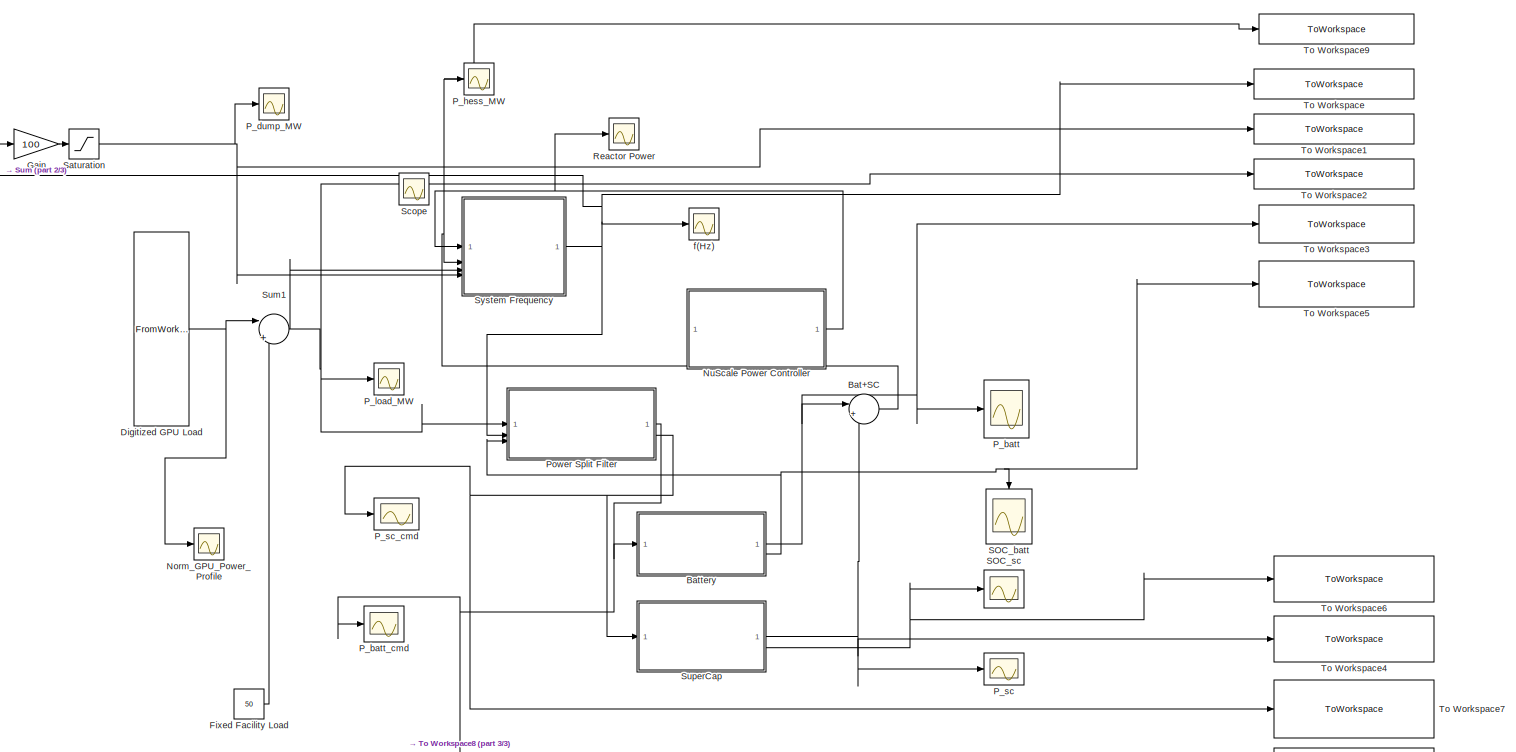
[diagram: root canvas - part 1/3, most of the canvas]
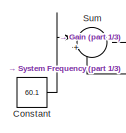
[diagram: root canvas - part 2/3, top left region]
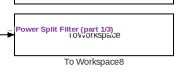
[diagram: root canvas - part 3/3, bottom right region]
MODEL slx_b360f21e9453
KIND model
CONFIG AbsTol = auto
CONFIG EnableMultiTasking = off
CONFIG FixedStep = auto
CONFIG MaxStep = 0.005
CONFIG MinStep = auto
CONFIG RelTol = 1e-3
CONFIG SampleTimeConstraint = Unconstrained
CONFIG SolverName = ode23tb
CONFIG StartTime = 0
CONFIG StopTime = 57600
BLOCK [Sum] Bat+SC
  Inputs = |++
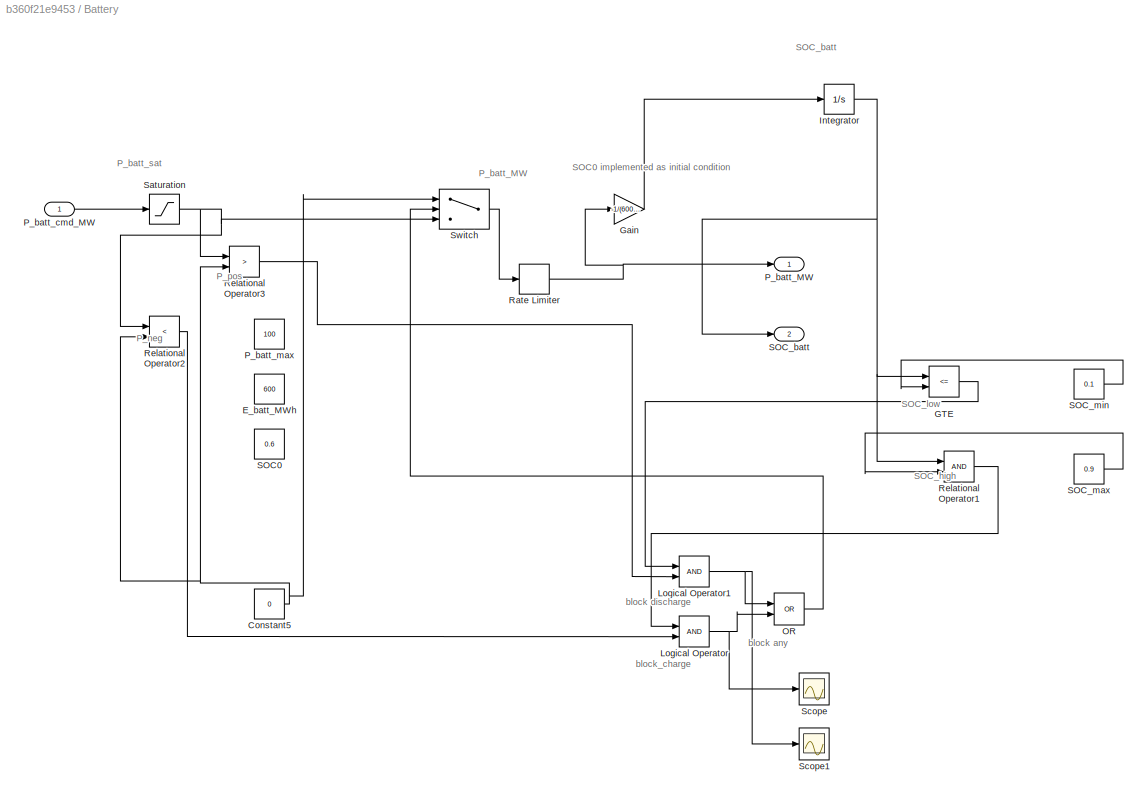
BLOCK [SubSystem] Battery
BLOCK [Constant] Battery/Constant5
  Value = 0
BLOCK [Constant] Battery/E_batt_MWh
  Value = 600
BLOCK [RelationalOperator] Battery/GTE
  InputSameDT = off
  Operator = <=
  OutDataTypeStr = boolean
  RndMeth = Simplest
BLOCK [Gain] Battery/Gain
  Gain = -1/(600*3600)
BLOCK [Integrator] Battery/Integrator
  InitialCondition = 0.5
BLOCK [Logic] Battery/Logical Operator
  AllPortsSameDT = off
  OutDataTypeStr = boolean
BLOCK [Logic] Battery/Logical Operator1
  AllPortsSameDT = off
  OutDataTypeStr = boolean
BLOCK [Logic] Battery/OR
  AllPortsSameDT = off
  IconShape = distinctive
  Operator = OR
  OutDataTypeStr = boolean
BLOCK [Outport] Battery/P_batt_MW
BLOCK [Inport] Battery/P_batt_cmd_MW
  NameLocation = left
BLOCK [Constant] Battery/P_batt_max
  Value = 100
BLOCK [RateLimiter] Battery/Rate Limiter
  FallingSlewLimit = -50
  RisingSlewLimit = 50
  SampleTimeMode = inherited
BLOCK [RelationalOperator] Battery/Relational Operator1
  InputSameDT = off
  OutDataTypeStr = boolean
  RndMeth = Simplest
BLOCK [RelationalOperator] Battery/Relational Operator2
  InputSameDT = off
  Operator = <
  OutDataTypeStr = boolean
  RndMeth = Simplest
BLOCK [RelationalOperator] Battery/Relational Operator3
  InputSameDT = off
  Operator = >
  OutDataTypeStr = boolean
  RndMeth = Simplest
BLOCK [Constant] Battery/SOC0
  Value = 0.6
BLOCK [Outport] Battery/SOC_batt
  Port = 2
BLOCK [Constant] Battery/SOC_max
  Value = 0.9
BLOCK [Constant] Battery/SOC_min
  Value = 0.1
BLOCK [Saturate] Battery/Saturation
  LowerLimit = -100
  UpperLimit = 100
BLOCK [Scope] Battery/Scope
  ActiveDisplayYMaximum = 17.941319549660328
  ActiveDisplayYMinimum = -13.085244769910002
  DataLoggingVariableName = ScopeData5
  Floating = off
  GraphicalSettings = {"AxesScalingProperties":{"AlignXAxis":"Center","AlignYAxis":"Center","AutoScaleXAxisLimits":false,"AxesScaling":"Manual","AxesScalingNumUpdates":10,"ExpandOnly":true,"ScaleAxesLimitsAtStop":false,"XAxisDataRange":100,"YAxisDataRange":80},"DisplayProperties":{"ColorOrder":["auto","auto","auto","auto","auto","auto","auto","auto","auto","auto","auto","auto","auto","auto","auto","auto","auto","auto",...<+1990ch>
  MultipleDisplayCache = [{"MaxYLimMag":10,"MaxYLimReal":17.941319549660328,"MinYLimMag":0,"MinYLimReal":-13.085244769910002,"PlotAsMagnitudePhase":false,"ShowGrid":true,"ShowLegend":false,"Title":"%<SignalLabel>","YLabel":""}]
  NumInputPorts = 1
  ScopeFrameLocation = window
  WasSavedAsWebScope = on
  WindowPosition = [1000.000000,510.000000,560.000000,420.000000,]
BLOCK [Scope] Battery/Scope1
  ActiveDisplayYMaximum = 1
  ActiveDisplayYMinimum = -1
  DataLoggingVariableName = ScopeData6
  Floating = off
  GraphicalSettings = {"Style":{"BackgroundColor":[0.12941176470588237,0.12941176470588237,0.12941176470588237],"AxesColor":[0.07058823529411765,0.07058823529411765,0.07058823529411765],"LabelsColor":[0.8509803921568627,0.8509803921568627,0.8509803921568627],"PreserveColors":false,"Visible":[true],"LineStyle":["-"],"LineWidth":[1.5],"BarWidth":[0.9],"LineColor":["auto"],"LineFaceAlpha":[1],"LineEdgeAlpha":[1],"Marker":...<+1922ch>
  MultipleDisplayCache = [{"MaxYLimMag":1,"MaxYLimReal":1,"MinYLimMag":0,"MinYLimReal":-1,"PlotAsMagnitudePhase":false,"ShowGrid":true,"ShowLegend":false,"Title":"%<SignalLabel>","YLabel":""}]
  NumInputPorts = 1
  ScopeFrameLocation = window
  WasSavedAsWebScope = on
  WindowPosition = [1675.000000,488.000000,560.000000,420.000000,]
BLOCK [Switch] Battery/Switch
  Criteria = u2 > Threshold
  InputSameDT = off
  SaturateOnIntegerOverflow = off
  Threshold = 0.5
BLOCK [Constant] Constant
  Value = 60.1
BLOCK [FromWorkspace] Digitized GPU Load 
  VariableName = load_ts
BLOCK [Constant] Fixed Facility Load
  Value = 50
BLOCK [Gain] Gain
  Gain = 100
BLOCK [Scope] Norm_GPU_Power_Profile
  ActiveDisplayYMaximum = 83.578557138931586
  ActiveDisplayYMinimum = 7.5678509924416346
  DataLoggingVariableName = ScopeData9
  Floating = off
  GraphicalSettings = {"Style":{"BackgroundColor":[0.12941176470588237,0.12941176470588237,0.12941176470588237],"AxesColor":[0.07058823529411765,0.07058823529411765,0.07058823529411765],"LabelsColor":[0.8509803921568627,0.8509803921568627,0.8509803921568627],"PreserveColors":false,"Visible":[true],"LineStyle":["-"],"LineWidth":[1.5],"BarWidth":[0.9],"LineColor":["auto"],"LineFaceAlpha":[1],"LineEdgeAlpha":[1],"Marker":...<+2049ch>
  MultipleDisplayCache = [{"MaxYLimMag":81.89640127205503,"MaxYLimReal":83.578557138931586,"MinYLimMag":19.362205214659284,"MinYLimReal":7.5678509924416346,"PlotAsMagnitudePhase":false,"ShowGrid":true,"ShowLegend":false,"Title":"%<SignalLabel>","YLabel":""}]
  NumInputPorts = 1
  ScopeFrameLocation = window
  WasSavedAsWebScope = on
  WindowPosition = [148.000000,422.000000,560.000000,414.000000,]
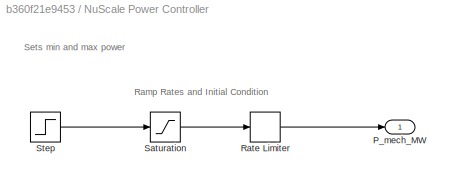
BLOCK [SubSystem] NuScale Power Controller
BLOCK [Outport] NuScale Power Controller/P_mech_MW
BLOCK [RateLimiter] NuScale Power Controller/Rate Limiter
  FallingSlewLimit = -0.385
  InitialCondition = 300
  LinearizeAsGain = off
  RisingSlewLimit = 0.385
  SampleTimeMode = inherited
BLOCK [Saturate] NuScale Power Controller/Saturation
  LowerLimit = 60
  UpperLimit = 308
BLOCK [Step] NuScale Power Controller/Step
  After = 150
  Before = 305
  SampleTime = 0
  Time = 28760
BLOCK [Scope] P_batt
  ActiveDisplayYMaximum = 19.94300469302301
  ActiveDisplayYMinimum = -37.384907164908867
  DataLoggingSaveFormat = Structure With Time
  DataLoggingVariableName = P_batt_MW
  Floating = off
  GraphicalSettings = {"AxesScalingProperties":{"AlignXAxis":"Center","AlignYAxis":"Center","AutoScaleXAxisLimits":false,"AxesScaling":"Manual","AxesScalingNumUpdates":10,"ExpandOnly":true,"ScaleAxesLimitsAtStop":false,"XAxisDataRange":100,"YAxisDataRange":80},"DisplayProperties":{"ColorOrder":["auto","auto","auto","auto","auto","auto","auto","auto","auto","auto","auto","auto","auto","auto","auto","auto","auto","auto",...<+2010ch>
  MultipleDisplayCache = [{"MaxYLimMag":54.35887325457265,"MaxYLimReal":19.94300469302301,"MinYLimMag":0,"MinYLimReal":-37.384907164908867,"PlotAsMagnitudePhase":false,"ShowGrid":true,"ShowLegend":false,"Title":"%<SignalLabel>","YLabel":""}]
  NumInputPorts = 1
  ScopeFrameLocation = window
  WasSavedAsWebScope = on
  WindowPosition = [2561.000000,261.000000,1920.000000,1009.000000,]
BLOCK [Scope] P_batt_cmd
  ActiveDisplayYMaximum = 75.99715262684947
  ActiveDisplayYMinimum = -187.77485148691687
  DataLoggingSaveFormat = Structure With Time
  DataLoggingVariableName = P_batt_cmd
  Floating = off
  GraphicalSettings = {"AxesScalingProperties":{"AlignXAxis":"Center","AlignYAxis":"Center","AutoScaleXAxisLimits":false,"AxesScaling":"Manual","AxesScalingNumUpdates":10,"ExpandOnly":true,"ScaleAxesLimitsAtStop":false,"XAxisDataRange":100,"YAxisDataRange":80},"DisplayProperties":{"ColorOrder":["auto","auto","auto","auto","auto","auto","auto","auto","auto","auto","auto","auto","auto","auto","auto","auto","auto","auto",...<+2034ch>
  MultipleDisplayCache = [{"MaxYLimMag":84.733872051257308,"MaxYLimReal":75.99715262684947,"MinYLimMag":0,"MinYLimReal":-187.77485148691687,"PlotAsMagnitudePhase":false,"ShowGrid":true,"ShowLegend":false,"Title":"%<SignalLabel>","YLabel":""}]
  NumInputPorts = 1
  ScopeFrameLocation = window
  WasSavedAsWebScope = on
  WindowPosition = [1521.000000,391.000000,674.000000,559.000000,]
BLOCK [Scope] P_dump_MW
  ActiveDisplayYMaximum = 25.49044457763469
  ActiveDisplayYMinimum = 6.5603009172756188
  DataLoggingSaveFormat = Structure With Time
  DataLoggingVariableName = P_dump_MW
  Floating = off
  GraphicalSettings = {"AxesScalingProperties":{"AlignXAxis":"Center","AlignYAxis":"Center","AutoScaleXAxisLimits":false,"AxesScaling":"Manual","AxesScalingNumUpdates":10,"ExpandOnly":true,"ScaleAxesLimitsAtStop":false,"XAxisDataRange":100,"YAxisDataRange":80},"DisplayProperties":{"ColorOrder":["auto","auto","auto","auto","auto","auto","auto","auto","auto","auto","auto","auto","auto","auto","auto","auto","auto","auto",...<+1997ch>
  MultipleDisplayCache = [{"MaxYLimMag":4.42491006581303,"MaxYLimReal":25.49044457763469,"MinYLimMag":0,"MinYLimReal":6.5603009172756188,"PlotAsMagnitudePhase":false,"ShowGrid":true,"ShowLegend":false,"Title":"%<SignalLabel>","YLabel":""}]
  NumInputPorts = 1
  ScopeFrameLocation = container
  WasSavedAsWebScope = on
  WindowPosition = [640.000000,336.000000,1280.000000,768.000000,]
BLOCK [Scope] P_hess_MW
  ActiveDisplayYMaximum = 17.504527906345061
  ActiveDisplayYMinimum = -10.620112806422254
  DataLoggingSaveFormat = Structure With Time
  DataLoggingVariableName = P_HESS_MW
  Floating = off
  GraphicalSettings = {"Style":{"BackgroundColor":[0.12941176470588237,0.12941176470588237,0.12941176470588237],"AxesColor":[0.07058823529411765,0.07058823529411765,0.07058823529411765],"LabelsColor":[0.8509803921568627,0.8509803921568627,0.8509803921568627],"PreserveColors":false,"Visible":[true],"LineStyle":["-"],"LineWidth":[1.5],"BarWidth":[0.9],"LineColor":["auto"],"LineFaceAlpha":[1],"LineEdgeAlpha":[1],"Marker":...<+1969ch>
  MultipleDisplayCache = [{"MaxYLimMag":49.110966930559606,"MaxYLimReal":17.504527906345061,"MinYLimMag":0,"MinYLimReal":-10.620112806422254,"PlotAsMagnitudePhase":false,"ShowGrid":true,"ShowLegend":false,"Title":"","YLabel":" "}]
  NumInputPorts = 1
  ScopeFrameLocation = container
  WasSavedAsWebScope = on
  WindowPosition = [21.000000,490.000000,1280.000000,768.000000,]
BLOCK [Scope] P_load_MW
  ActiveDisplayYMaximum = 569.112693801637
  ActiveDisplayYMinimum = 58.154484848407179
  DataLoggingSaveFormat = Structure With Time
  DataLoggingVariableName = P_load_MW
  Floating = off
  GraphicalSettings = {"Style":{"BackgroundColor":[0.12941176470588237,0.12941176470588237,0.12941176470588237],"AxesColor":[0.07058823529411765,0.07058823529411765,0.07058823529411765],"LabelsColor":[0.8509803921568627,0.8509803921568627,0.8509803921568627],"PreserveColors":false,"Visible":[true],"LineStyle":["-"],"LineWidth":[1.5],"BarWidth":[0.9],"LineColor":["auto"],"LineFaceAlpha":[1],"LineEdgeAlpha":[1],"Marker":...<+2005ch>
  MultipleDisplayCache = [{"MaxYLimMag":55.38671875,"MaxYLimReal":569.112693801637,"MinYLimMag":1.5195312500000018,"MinYLimReal":58.154484848407179,"PlotAsMagnitudePhase":false,"ShowGrid":true,"ShowLegend":false,"Title":"%<SignalLabel>","YLabel":""}]
  NumInputPorts = 1
  ScopeFrameLocation = window
  WasSavedAsWebScope = on
  WindowPosition = [2.000000,50.000000,995.000000,1360.000000,]
BLOCK [Scope] P_sc
  ActiveDisplayYMaximum = -106.02414017820828
  ActiveDisplayYMinimum = -198.52464221560328
  DataLoggingSaveFormat = Structure With Time
  DataLoggingVariableName = P_sc_MW
  Floating = off
  GraphicalSettings = {"AxesScalingProperties":{"AlignXAxis":"Center","AlignYAxis":"Center","AutoScaleXAxisLimits":false,"AxesScaling":"Manual","AxesScalingNumUpdates":10,"ExpandOnly":true,"ScaleAxesLimitsAtStop":false,"XAxisDataRange":100,"YAxisDataRange":80},"DisplayProperties":{"ColorOrder":["auto","auto","auto","auto","auto","auto","auto","auto","auto","auto","auto","auto","auto","auto","auto","auto","auto","auto",...<+2014ch>
  MultipleDisplayCache = [{"MaxYLimMag":2.5592897706129731,"MaxYLimReal":-106.02414017820828,"MinYLimMag":0,"MinYLimReal":-198.52464221560328,"PlotAsMagnitudePhase":false,"ShowGrid":true,"ShowLegend":false,"Title":"%<SignalLabel>","YLabel":""}]
  NumInputPorts = 1
  ScopeFrameLocation = window
  WasSavedAsWebScope = on
  WindowPosition = [1282.000000,746.000000,1278.000000,664.000000,]
BLOCK [Scope] P_sc_cmd
  ActiveDisplayYMaximum = 17.195565288472629
  ActiveDisplayYMinimum = -8.3010166612799861
  DataLoggingSaveFormat = Structure With Time
  DataLoggingVariableName = P_sc_cmd
  Floating = off
  GraphicalSettings = {"Style":{"BackgroundColor":[0.12941176470588237,0.12941176470588237,0.12941176470588237],"AxesColor":[0.07058823529411765,0.07058823529411765,0.07058823529411765],"LabelsColor":[0.8509803921568627,0.8509803921568627,0.8509803921568627],"PreserveColors":false,"Visible":[true],"LineStyle":["-"],"LineWidth":[1.5],"BarWidth":[0.9],"LineColor":["auto"],"LineFaceAlpha":[1],"LineEdgeAlpha":[1],"Marker":...<+2019ch>
  MultipleDisplayCache = [{"MaxYLimMag":39.292522477347681,"MaxYLimReal":17.195565288472629,"MinYLimMag":0,"MinYLimReal":-8.3010166612799861,"PlotAsMagnitudePhase":false,"ShowGrid":true,"ShowLegend":false,"Title":"%<SignalLabel>","YLabel":""}]
  NumInputPorts = 1
  ScopeFrameLocation = window
  WasSavedAsWebScope = on
  WindowPosition = [876.000000,559.000000,634.000000,464.000000,]
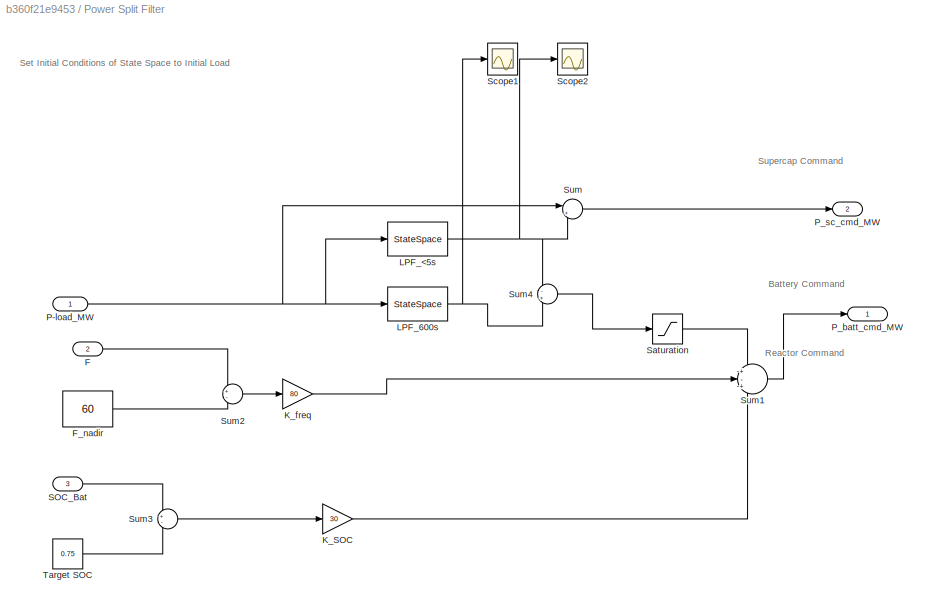
BLOCK [SubSystem] Power Split Filter
BLOCK [Inport] Power Split Filter/F
  Port = 2
BLOCK [Constant] Power Split Filter/F_nadir
  Value = 60
BLOCK [Gain] Power Split Filter/K_SOC
  Gain = 30
BLOCK [Gain] Power Split Filter/K_freq
  Gain = 80
BLOCK [StateSpace] Power Split Filter/LPF_600s
  A = -1/900
  B = 1/900
  D = 0
  InitialCondition = 280
BLOCK [StateSpace] Power Split Filter/LPF_<5s
  A = -0.2
  B = 0.2
  D = 0
  InitialCondition = 280
BLOCK [Inport] Power Split Filter/P-load_MW
BLOCK [Outport] Power Split Filter/P_batt_cmd_MW
  OutMax = 15
  OutMin = -15
BLOCK [Outport] Power Split Filter/P_sc_cmd_MW
  OutMax = 10
  OutMin = -10
  Port = 2
BLOCK [Inport] Power Split Filter/SOC_Bat
  Port = 3
BLOCK [Saturate] Power Split Filter/Saturation
  LowerLimit = -25
  UpperLimit = 25
BLOCK [Scope] Power Split Filter/Scope1
  ActiveDisplayYMaximum = 145.81639543994109
  ActiveDisplayYMinimum = 49.062612418746049
  DataLoggingVariableName = ScopeData3
  Floating = off
  GraphicalSettings = {"Style":{"BackgroundColor":[0.12941176470588237,0.12941176470588237,0.12941176470588237],"AxesColor":[0.07058823529411765,0.07058823529411765,0.07058823529411765],"LabelsColor":[0.8509803921568627,0.8509803921568627,0.8509803921568627],"PreserveColors":false,"Visible":[true],"LineStyle":["-"],"LineWidth":[1.5],"BarWidth":[0.9],"LineColor":["auto"],"LineFaceAlpha":[1],"LineEdgeAlpha":[1],"Marker":...<+2027ch>
  MultipleDisplayCache = [{"MaxYLimMag":143.50551243003048,"MaxYLimReal":145.81639543994109,"MinYLimMag":51.359052409844722,"MinYLimReal":49.062612418746049,"PlotAsMagnitudePhase":false,"ShowGrid":true,"ShowLegend":false,"Title":"%<SignalLabel>","YLabel":""}]
  NumInputPorts = 1
  ScopeFrameLocation = window
  WasSavedAsWebScope = on
  WindowPosition = [1000.000000,510.000000,560.000000,420.000000,]
BLOCK [Scope] Power Split Filter/Scope2
  ActiveDisplayYMaximum = 63.141494099133709
  ActiveDisplayYMinimum = 59.667836185063258
  DataLoggingVariableName = ScopeData4
  Floating = off
  GraphicalSettings = {"Style":{"BackgroundColor":[0.12941176470588237,0.12941176470588237,0.12941176470588237],"AxesColor":[0.07058823529411765,0.07058823529411765,0.07058823529411765],"LabelsColor":[0.8509803921568627,0.8509803921568627,0.8509803921568627],"PreserveColors":false,"Visible":[true],"LineStyle":["-"],"LineWidth":[1.5],"BarWidth":[0.9],"LineColor":["auto"],"LineFaceAlpha":[1],"LineEdgeAlpha":[1],"Marker":...<+2023ch>
  MultipleDisplayCache = [{"MaxYLimMag":62.700608679549418,"MaxYLimReal":63.141494099133709,"MinYLimMag":59.699932368938953,"MinYLimReal":59.667836185063258,"PlotAsMagnitudePhase":false,"ShowGrid":true,"ShowLegend":false,"Title":"%<SignalLabel>","YLabel":""}]
  NumInputPorts = 1
  ScopeFrameLocation = window
  WasSavedAsWebScope = on
  WindowPosition = [1000.000000,510.000000,560.000000,420.000000,]
BLOCK [Sum] Power Split Filter/Sum
  Inputs = |+-
BLOCK [Sum] Power Split Filter/Sum1
  Inputs = +-+
BLOCK [Sum] Power Split Filter/Sum2
  Inputs = +-
BLOCK [Sum] Power Split Filter/Sum3
  Inputs = +-
BLOCK [Sum] Power Split Filter/Sum4
  Inputs = -+
BLOCK [Constant] Power Split Filter/Target SOC
  Value = 0.75
BLOCK [Scope] Reactor Power
  ActiveDisplayYMaximum = 150.0841476543022
  ActiveDisplayYMinimum = 149.82124151201739
  DataLoggingVariableName = ScopeData2
  Floating = off
  GraphicalSettings = {"AxesScalingProperties":{"AlignXAxis":"Center","AlignYAxis":"Center","AutoScaleXAxisLimits":false,"AxesScaling":"Manual","AxesScalingNumUpdates":10,"ExpandOnly":true,"ScaleAxesLimitsAtStop":false,"XAxisDataRange":100,"YAxisDataRange":80},"DisplayProperties":{"ColorOrder":["auto","auto","auto","auto","auto","auto","auto","auto","auto","auto","auto","auto","auto","auto","auto","auto","auto","auto",...<+2070ch>
  MultipleDisplayCache = [{"MaxYLimMag":43.752226419291404,"MaxYLimReal":150.0841476543022,"MinYLimMag":19.41709097879216,"MinYLimReal":149.82124151201739,"PlotAsMagnitudePhase":false,"ShowGrid":true,"ShowLegend":false,"Title":"%<SignalLabel>","YLabel":""}]
  NumInputPorts = 1
  ScopeFrameLocation = window
  WasSavedAsWebScope = on
  WindowPosition = [588.000000,550.000000,560.000000,466.000000,]
BLOCK [Scope] SOC_batt
  ActiveDisplayYMaximum = 1.0471717298948067
  ActiveDisplayYMinimum = -0.29273518191827375
  DataLoggingSaveFormat = Structure With Time
  DataLoggingVariableName = SOC_batt
  Floating = off
  GraphicalSettings = {"AxesScalingProperties":{"AlignXAxis":"Center","AlignYAxis":"Center","AutoScaleXAxisLimits":false,"AxesScaling":"Manual","AxesScalingNumUpdates":10,"ExpandOnly":true,"ScaleAxesLimitsAtStop":false,"XAxisDataRange":100,"YAxisDataRange":80},"DisplayProperties":{"ColorOrder":["auto","auto","auto","auto","auto","auto","auto","auto","auto","auto","auto","auto","auto","auto","auto","auto","auto","auto",...<+2052ch>
  MultipleDisplayCache = [{"MaxYLimMag":0.61360399735018278,"MaxYLimReal":1.0471717298948067,"MinYLimMag":0.47867508109393159,"MinYLimReal":-0.29273518191827375,"PlotAsMagnitudePhase":false,"ShowGrid":true,"ShowLegend":false,"Title":"%<SignalLabel>","YLabel":""}]
  NameLocation = left
  NumInputPorts = 1
  ScopeFrameLocation = window
  WasSavedAsWebScope = on
  WindowPosition = [3042.000000,159.000000,1278.000000,664.000000,]
BLOCK [Scope] SOC_sc
  ActiveDisplayYMaximum = 0.73168131364842448
  ActiveDisplayYMinimum = 0.11776806010766516
  DataLoggingSaveFormat = Structure With Time
  DataLoggingVariableName = SOC_sc
  Floating = off
  GraphicalSettings = {"Style":{"BackgroundColor":[0.12941176470588237,0.12941176470588237,0.12941176470588237],"AxesColor":[0.07058823529411765,0.07058823529411765,0.07058823529411765],"LabelsColor":[0.8509803921568627,0.8509803921568627,0.8509803921568627],"PreserveColors":false,"Visible":[true],"LineStyle":["-"],"LineWidth":[1.5],"BarWidth":[0.9],"LineColor":["auto"],"LineFaceAlpha":[1],"LineEdgeAlpha":[1],"Marker":...<+2039ch>
  MultipleDisplayCache = [{"MaxYLimMag":0.75000000000000233,"MaxYLimReal":0.73168131364842448,"MinYLimMag":0.74999999999999956,"MinYLimReal":0.11776806010766516,"PlotAsMagnitudePhase":false,"ShowGrid":true,"ShowLegend":false,"Title":"%<SignalLabel>","YLabel":""}]
  NumInputPorts = 1
  ScopeFrameLocation = window
  WasSavedAsWebScope = on
  WindowPosition = [1282.000000,746.000000,1278.000000,664.000000,]
BLOCK [Saturate] Saturation
  LowerLimit = 0
  UpperLimit = 250
BLOCK [Scope] Scope
  ActiveDisplayYMaximum = 1
  ActiveDisplayYMinimum = -1
  DataLoggingVariableName = ScopeData1
  Floating = off
  GraphicalSettings = {"Style":{"BackgroundColor":[0.12941176470588237,0.12941176470588237,0.12941176470588237],"AxesColor":[0.07058823529411765,0.07058823529411765,0.07058823529411765],"LabelsColor":[0.8509803921568627,0.8509803921568627,0.8509803921568627],"PreserveColors":false,"Visible":[true],"LineStyle":["-"],"LineWidth":[1.5],"BarWidth":[0.9],"LineColor":["auto"],"LineFaceAlpha":[1],"LineEdgeAlpha":[1],"Marker":...<+2028ch>
  IOType = viewer
  MultipleDisplayCache = [{"MaxYLimMag":1,"MaxYLimReal":1,"MinYLimMag":0,"MinYLimReal":-1,"PlotAsMagnitudePhase":false,"ShowGrid":true,"ShowLegend":false,"Title":"%<SignalLabel>","YLabel":""}]
  NumInputPorts = 1
  ScopeFrameLocation = window
  WasSavedAsWebScope = on
  WindowPosition = [875.000000,235.000000,560.000000,420.000000,]
BLOCK [Sum] Sum
  Inputs = -+
BLOCK [Sum] Sum1
  Inputs = |++
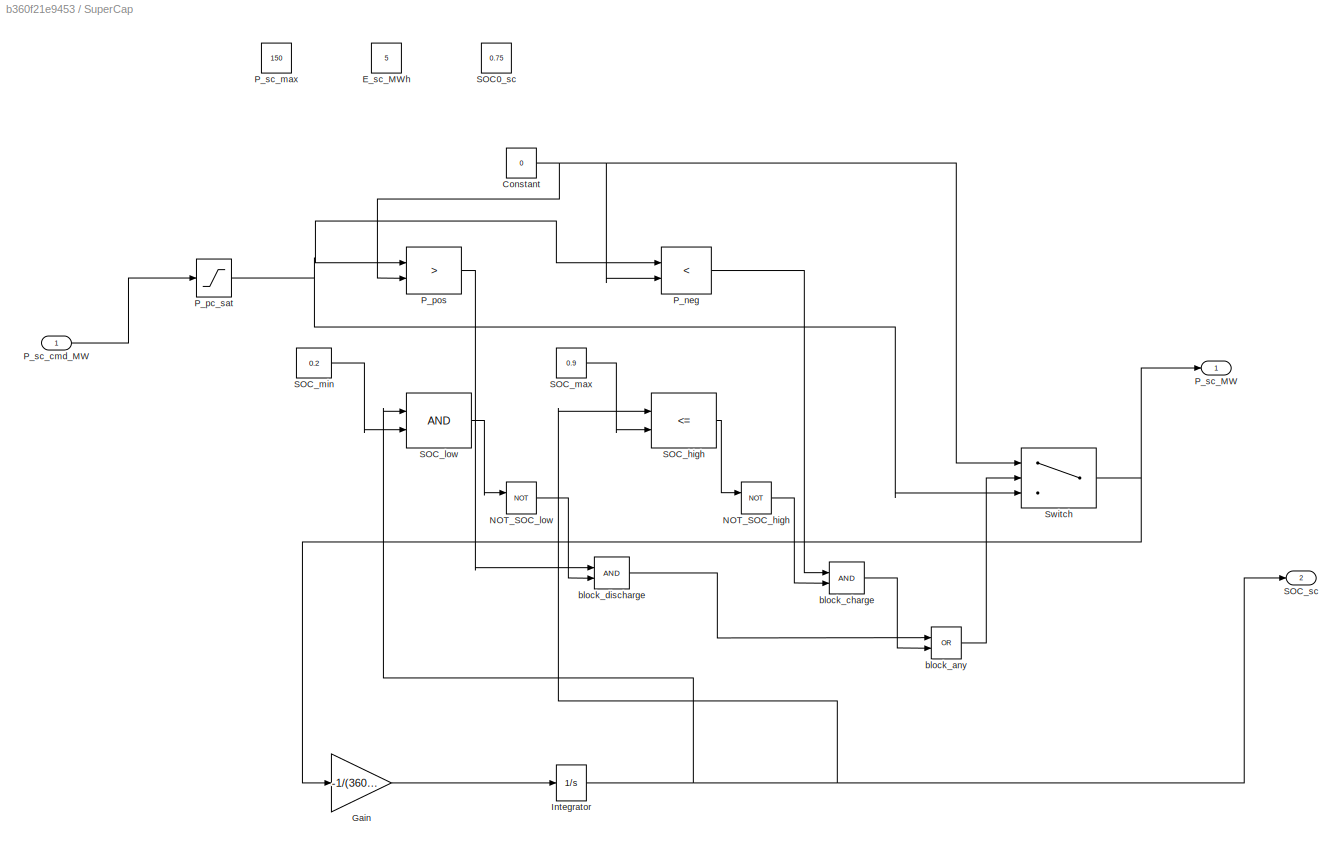
BLOCK [SubSystem] SuperCap
BLOCK [Constant] SuperCap/Constant
  Value = 0
BLOCK [Constant] SuperCap/E_sc_MWh
  Value = 5
BLOCK [Gain] SuperCap/Gain
  Gain = -1/(3600 * 5)
BLOCK [Integrator] SuperCap/Integrator
  InitialCondition = 0.5
BLOCK [Logic] SuperCap/NOT_SOC_high
  AllPortsSameDT = off
  IconShape = distinctive
  Operator = NOT
  OutDataTypeStr = boolean
BLOCK [Logic] SuperCap/NOT_SOC_low
  AllPortsSameDT = off
  IconShape = distinctive
  Operator = NOT
  OutDataTypeStr = boolean
BLOCK [RelationalOperator] SuperCap/P_neg
  InputSameDT = off
  Operator = <
  OutDataTypeStr = boolean
  RndMeth = Simplest
BLOCK [Saturate] SuperCap/P_pc_sat
  LowerLimit = -150
  UpperLimit = 150
BLOCK [RelationalOperator] SuperCap/P_pos
  InputSameDT = off
  Operator = >
  OutDataTypeStr = boolean
  RndMeth = Simplest
BLOCK [Outport] SuperCap/P_sc_MW
BLOCK [Inport] SuperCap/P_sc_cmd_MW
BLOCK [Constant] SuperCap/P_sc_max
  Value = 150
BLOCK [Constant] SuperCap/SOC0_sc
  Value = 0.75
BLOCK [RelationalOperator] SuperCap/SOC_high
  InputSameDT = off
  Operator = <=
  OutDataTypeStr = boolean
  RndMeth = Simplest
BLOCK [RelationalOperator] SuperCap/SOC_low
  InputSameDT = off
  OutDataTypeStr = boolean
  RndMeth = Simplest
BLOCK [Constant] SuperCap/SOC_max
  Value = 0.9
BLOCK [Constant] SuperCap/SOC_min
  Value = 0.2
BLOCK [Outport] SuperCap/SOC_sc
  NameLocation = right
  Port = 2
BLOCK [Switch] SuperCap/Switch
  InputSameDT = off
  SaturateOnIntegerOverflow = off
  Threshold = 0.5
BLOCK [Logic] SuperCap/block_any
  AllPortsSameDT = off
  IconShape = distinctive
  Operator = OR
  OutDataTypeStr = boolean
BLOCK [Logic] SuperCap/block_charge
  AllPortsSameDT = off
  IconShape = distinctive
  OutDataTypeStr = boolean
BLOCK [Logic] SuperCap/block_discharge
  AllPortsSameDT = off
  IconShape = distinctive
  OutDataTypeStr = boolean
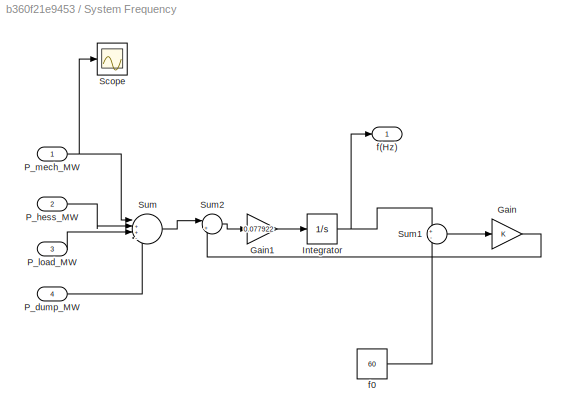
BLOCK [SubSystem] System Frequency
BLOCK [Gain] System Frequency/Gain
BLOCK [Gain] System Frequency/Gain1
  Gain = 0.077922
BLOCK [Integrator] System Frequency/Integrator
  InitialCondition = 60
BLOCK [Inport] System Frequency/P_dump_MW
  Port = 4
BLOCK [Inport] System Frequency/P_hess_MW
  Port = 2
BLOCK [Inport] System Frequency/P_load_MW
  Port = 3
BLOCK [Inport] System Frequency/P_mech_MW
BLOCK [Scope] System Frequency/Scope
  ActiveDisplayYMaximum = 1
  ActiveDisplayYMinimum = -1
  Floating = off
  GraphicalSettings = {"Style":{"BackgroundColor":[0.12941176470588237,0.12941176470588237,0.12941176470588237],"AxesColor":[0.07058823529411765,0.07058823529411765,0.07058823529411765],"LabelsColor":[0.8509803921568627,0.8509803921568627,0.8509803921568627],"PreserveColors":false,"Visible":[true],"LineStyle":["-"],"LineWidth":[1.5],"BarWidth":[0.9],"LineColor":["auto"],"LineFaceAlpha":[1],"LineEdgeAlpha":[1],"Marker":...<+1906ch>
  MultipleDisplayCache = [{"MaxYLimMag":1,"MaxYLimReal":1,"MinYLimMag":0,"MinYLimReal":-1,"PlotAsMagnitudePhase":false,"ShowGrid":true,"ShowLegend":false,"Title":"%<SignalLabel>","YLabel":""}]
  NumInputPorts = 1
  ScopeFrameLocation = window
  WasSavedAsWebScope = on
  WindowPosition = [1000.000000,510.000000,560.000000,420.000000,]
BLOCK [Sum] System Frequency/Sum
  Inputs = |++--
BLOCK [Sum] System Frequency/Sum1
  Inputs = +-
BLOCK [Sum] System Frequency/Sum2
  Inputs = |+-
BLOCK [Outport] System Frequency/f(Hz)
BLOCK [Constant] System Frequency/f0
  Value = 60
BLOCK [ToWorkspace] To Workspace
  FixptAsFi = on
  MaxDataPoints = inf
  SampleTime = -1
  SaveFormat = Timeseries
  VariableName = Frequency_Hz
BLOCK [ToWorkspace] To Workspace1
  FixptAsFi = on
  MaxDataPoints = inf
  SampleTime = -1
  SaveFormat = Timeseries
  VariableName = Dump_Load
BLOCK [ToWorkspace] To Workspace2
  FixptAsFi = on
  MaxDataPoints = inf
  SampleTime = -1
  SaveFormat = Timeseries
  VariableName = Facility_Load
BLOCK [ToWorkspace] To Workspace3
  FixptAsFi = on
  MaxDataPoints = inf
  SampleTime = -1
  SaveFormat = Timeseries
  VariableName = Battery_Power
BLOCK [ToWorkspace] To Workspace4
  FixptAsFi = on
  MaxDataPoints = inf
  SampleTime = -1
  SaveFormat = Timeseries
  VariableName = Supercapcitor_Power
BLOCK [ToWorkspace] To Workspace5
  FixptAsFi = on
  MaxDataPoints = inf
  SampleTime = -1
  SaveFormat = Timeseries
  VariableName = Battery_State_of_Charge
BLOCK [ToWorkspace] To Workspace6
  FixptAsFi = on
  MaxDataPoints = inf
  SampleTime = -1
  SaveFormat = Timeseries
  VariableName = Supercapacitor_State_of_Charge
BLOCK [ToWorkspace] To Workspace7
  FixptAsFi = on
  MaxDataPoints = inf
  SampleTime = -1
  SaveFormat = Timeseries
  VariableName = Supercapacitor_Demand
BLOCK [ToWorkspace] To Workspace8
  FixptAsFi = on
  MaxDataPoints = inf
  SampleTime = -1
  SaveFormat = Timeseries
  VariableName = Battery_Demand
BLOCK [ToWorkspace] To Workspace9
  FixptAsFi = on
  MaxDataPoints = inf
  SampleTime = -1
  SaveFormat = Timeseries
  VariableName = Hybrid_Energy_Storage_System_Power
BLOCK [Scope] f(Hz)
  ActiveDisplayYMaximum = 72.466557603230314
  ActiveDisplayYMinimum = 43.509673055268742
  DataLoggingSaveFormat = Structure With Time
  DataLoggingVariableName = f_Hz
  Floating = off
  GraphicalSettings = {"AxesScalingProperties":{"AlignXAxis":"Center","AlignYAxis":"Center","AutoScaleXAxisLimits":false,"AxesScaling":"Manual","AxesScalingNumUpdates":10,"ExpandOnly":true,"ScaleAxesLimitsAtStop":false,"XAxisDataRange":100,"YAxisDataRange":80},"DisplayProperties":{"ColorOrder":["auto","auto","auto","auto","auto","auto","auto","auto","auto","auto","auto","auto","auto","auto","auto","auto","auto","auto",...<+2054ch>
  MultipleDisplayCache = [{"MaxYLimMag":60.57755324322968,"MaxYLimReal":72.466557603230314,"MinYLimMag":58.561061456678082,"MinYLimReal":43.509673055268742,"PlotAsMagnitudePhase":false,"ShowGrid":true,"ShowLegend":false,"Title":"%<SignalLabel>","YLabel":""}]
  NumInputPorts = 1
  ScopeFrameLocation = container
  WasSavedAsWebScope = on
  WindowPosition = [1.000000,49.000000,2560.000000,1369.000000,]
ANNOTATION Battery: P_neg
ANNOTATION Battery: P_pos
ANNOTATION Battery: SOC_high
ANNOTATION Battery: SOC_low
ANNOTATION Battery: P_batt_MW
ANNOTATION Battery: P_batt_sat
ANNOTATION Battery: SOC0 implemented as initial condition
ANNOTATION Battery: SOC_batt
ANNOTATION Battery: block any
ANNOTATION Battery: block discharge
ANNOTATION Battery: block_charge
ANNOTATION NuScale Power Controller: Ramp Rates and Initial Condition
ANNOTATION NuScale Power Controller: Sets min and max power
ANNOTATION Power Split Filter: Battery Command
ANNOTATION Power Split Filter: Reactor Command
ANNOTATION Power Split Filter: Set Initial Conditions of State Space to Initial Load
ANNOTATION Power Split Filter: Supercap Command
NET Bat+SC:1 -> P_hess_MW:1, System Frequency:2, To Workspace9:1
NET Battery/Constant5:1 -> Battery/Relational Operator2:2, Battery/Relational Operator3:2, Battery/Switch:1
LINE Battery/GTE:1 -> Battery/Logical Operator1:1
LINE Battery/Gain:1 -> Battery/Integrator:1
NET Battery/Integrator:1 -> Battery/GTE:1, Battery/Relational Operator1:1, Battery/SOC_batt:1
NET Battery/Logical Operator1:1 -> Battery/OR:1, Battery/Scope1:1
NET Battery/Logical Operator:1 -> Battery/OR:2, Battery/Scope:1
LINE Battery/OR:1 -> Battery/Switch:2
LINE Battery/P_batt_cmd_MW:1 -> Battery/Saturation:1
NET Battery/Rate Limiter:1 -> Battery/Gain:1, Battery/P_batt_MW:1
LINE Battery/Relational Operator1:1 -> Battery/Logical Operator:1
LINE Battery/Relational Operator2:1 -> Battery/Logical Operator:2
LINE Battery/Relational Operator3:1 -> Battery/Logical Operator1:2
LINE Battery/SOC_max:1 -> Battery/Relational Operator1:2
LINE Battery/SOC_min:1 -> Battery/GTE:2
NET Battery/Saturation:1 -> Battery/Relational Operator2:1, Battery/Relational Operator3:1, Battery/Switch:3
LINE Battery/Switch:1 -> Battery/Rate Limiter:1
NET Battery:1 -> Bat+SC:1, P_batt:1, To Workspace3:1
NET Battery:2 -> Power Split Filter:3, SOC_batt:1, To Workspace5:1
LINE Constant:1 -> Sum:1
NET Digitized GPU Load :1 -> Norm_GPU_Power_Profile:1, Sum1:1
LINE Fixed Facility Load:1 -> Sum1:2
LINE Gain:1 -> Saturation:1
LINE NuScale Power Controller/Rate Limiter:1 -> NuScale Power Controller/P_mech_MW:1
LINE NuScale Power Controller/Saturation:1 -> NuScale Power Controller/Rate Limiter:1
LINE NuScale Power Controller/Step:1 -> NuScale Power Controller/Saturation:1
NET NuScale Power Controller:1 -> Reactor Power:1, System Frequency:1
LINE Power Split Filter/F:1 -> Power Split Filter/Sum2:1
LINE Power Split Filter/F_nadir:1 -> Power Split Filter/Sum2:2
LINE Power Split Filter/K_SOC:1 -> Power Split Filter/Sum1:3
LINE Power Split Filter/K_freq:1 -> Power Split Filter/Sum1:2
NET Power Split Filter/LPF_600s:1 -> Power Split Filter/Scope1:1, Power Split Filter/Sum4:2
NET Power Split Filter/LPF_<5s:1 -> Power Split Filter/Scope2:1, Power Split Filter/Sum4:1, Power Split Filter/Sum:2
NET Power Split Filter/P-load_MW:1 -> Power Split Filter/LPF_600s:1, Power Split Filter/LPF_<5s:1, Power Split Filter/Sum:1
LINE Power Split Filter/SOC_Bat:1 -> Power Split Filter/Sum3:1
LINE Power Split Filter/Saturation:1 -> Power Split Filter/Sum1:1
LINE Power Split Filter/Sum1:1 -> Power Split Filter/P_batt_cmd_MW:1
LINE Power Split Filter/Sum2:1 -> Power Split Filter/K_freq:1
LINE Power Split Filter/Sum3:1 -> Power Split Filter/K_SOC:1
LINE Power Split Filter/Sum4:1 -> Power Split Filter/Saturation:1
LINE Power Split Filter/Sum:1 -> Power Split Filter/P_sc_cmd_MW:1
LINE Power Split Filter/Target SOC:1 -> Power Split Filter/Sum3:2
NET Power Split Filter:1 -> Battery:1, P_batt_cmd:1, To Workspace8:1
NET Power Split Filter:2 -> P_sc_cmd:1, SuperCap:1, To Workspace7:1
NET Saturation:1 -> P_dump_MW:1, System Frequency:4, To Workspace1:1
NET Sum1:1 -> P_load_MW:1, Power Split Filter:1, System Frequency:3, To Workspace2:1
LINE Sum:1 -> Gain:1
NET SuperCap/Constant:1 -> SuperCap/P_neg:2, SuperCap/P_pos:2, SuperCap/Switch:1
LINE SuperCap/Gain:1 -> SuperCap/Integrator:1
NET SuperCap/Integrator:1 -> SuperCap/SOC_high:1, SuperCap/SOC_low:1, SuperCap/SOC_sc:1
LINE SuperCap/NOT_SOC_high:1 -> SuperCap/block_charge:2
LINE SuperCap/NOT_SOC_low:1 -> SuperCap/block_discharge:2
LINE SuperCap/P_neg:1 -> SuperCap/block_charge:1
NET SuperCap/P_pc_sat:1 -> SuperCap/P_neg:1, SuperCap/P_pos:1, SuperCap/Switch:3
LINE SuperCap/P_pos:1 -> SuperCap/block_discharge:1
LINE SuperCap/P_sc_cmd_MW:1 -> SuperCap/P_pc_sat:1
LINE SuperCap/SOC_high:1 -> SuperCap/NOT_SOC_high:1
LINE SuperCap/SOC_low:1 -> SuperCap/NOT_SOC_low:1
LINE SuperCap/SOC_max:1 -> SuperCap/SOC_high:2
LINE SuperCap/SOC_min:1 -> SuperCap/SOC_low:2
NET SuperCap/Switch:1 -> SuperCap/Gain:1, SuperCap/P_sc_MW:1
LINE SuperCap/block_any:1 -> SuperCap/Switch:2
LINE SuperCap/block_charge:1 -> SuperCap/block_any:2
LINE SuperCap/block_discharge:1 -> SuperCap/block_any:1
NET SuperCap:1 -> Bat+SC:2, P_sc:1, To Workspace4:1
NET SuperCap:2 -> SOC_sc:1, To Workspace6:1
LINE System Frequency/Gain1:1 -> System Frequency/Integrator:1
LINE System Frequency/Gain:1 -> System Frequency/Sum2:2
NET System Frequency/Integrator:1 -> System Frequency/Sum1:1, System Frequency/f(Hz):1
LINE System Frequency/P_dump_MW:1 -> System Frequency/Sum:4
LINE System Frequency/P_hess_MW:1 -> System Frequency/Sum:2
LINE System Frequency/P_load_MW:1 -> System Frequency/Sum:3
NET System Frequency/P_mech_MW:1 -> System Frequency/Scope:1, System Frequency/Sum:1
LINE System Frequency/Sum1:1 -> System Frequency/Gain:1
LINE System Frequency/Sum2:1 -> System Frequency/Gain1:1
LINE System Frequency/Sum:1 -> System Frequency/Sum2:1
LINE System Frequency/f0:1 -> System Frequency/Sum1:2
NET System Frequency:1 -> Power Split Filter:2, Sum:2, To Workspace:1, f(Hz):1
note: NET lines group one-source signal fan-out (src -> all destinations, sorted); 1:1 wires keep LINE
